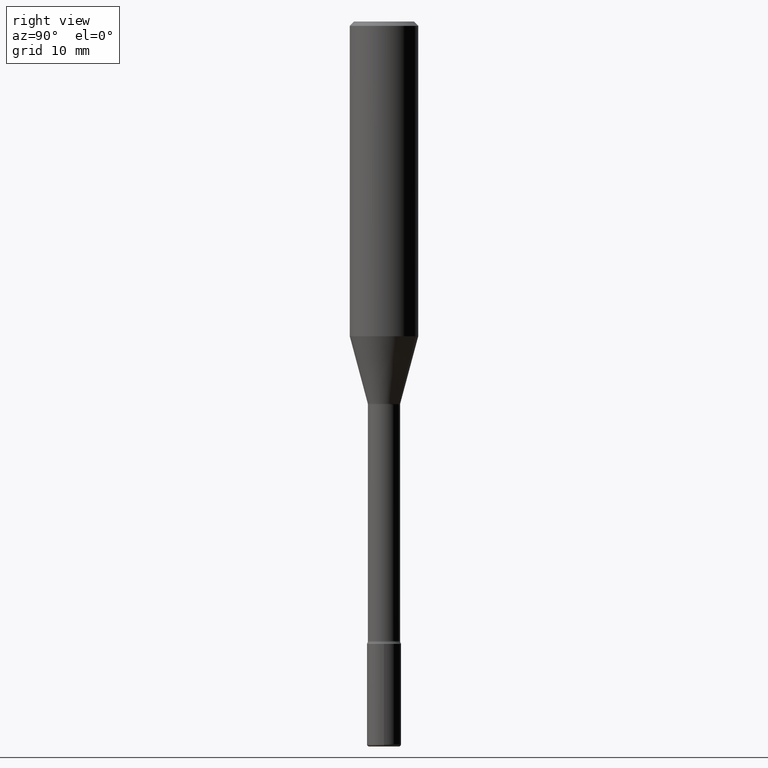
[diagram: clean part render]
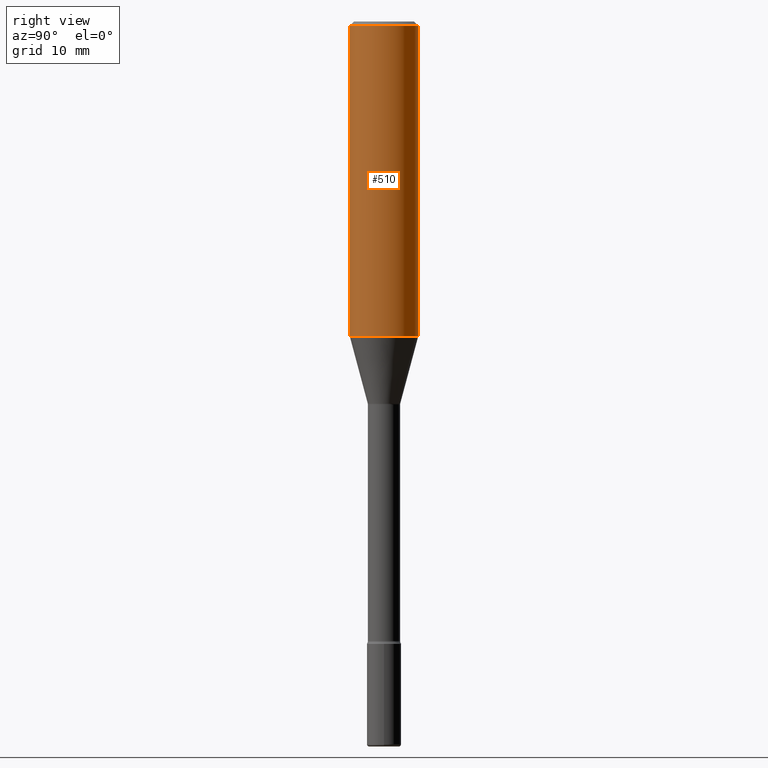
[diagram: same view with one face highlighted and labeled with its STEP entity id]
A machine part, right view. The second image highlights one B-rep face of the part: STEP entity #510.
In plain terms, the highlighted cylindrical surface (edge-blend (fillet) strip) has radius 2.9997 mm, axis along (-0, 0, 1).
Its self-contained STEP definition (entity closure, byte-faithful):
#25 = CARTESIAN_POINT ( 'NONE',  ( -8.246878922347212441E-16, -0.1181000000000037714, -1.085273619446188276 ) ) ;
#75 = AXIS2_PLACEMENT_3D ( 'NONE', #563, #560, #337 ) ;
#78 = CARTESIAN_POINT ( 'NONE',  ( 3.667971862080338817E-31, -5.237553310618831452E-17, -0.01500000000000002720 ) ) ;
#110 = CARTESIAN_POINT ( 'NONE',  ( -8.246878922347479668E-16, -0.1180999999999999966, 8.904434295473012272E-16 ) ) ;
#133 = CARTESIAN_POINT ( 'NONE',  ( 8.391509709326781971E-16, 0.1180999999999999966, 6.570336823519088696E-17 ) ) ;
#139 = ORIENTED_EDGE ( 'NONE', *, *, #466, .T. ) ;
#146 = DIRECTION ( 'NONE',  ( -2.445314574720221172E-29, 3.491702207079214016E-15, 1.000000000000000000 ) ) ;
#149 = CARTESIAN_POINT ( 'NONE',  ( -8.246878922347475723E-16, -0.1181000000000000522, -0.01499999999999961607 ) ) ;
#155 = AXIS2_PLACEMENT_3D ( 'NONE', #567, #416, #513 ) ;
#172 = VERTEX_POINT ( 'NONE', #235 ) ;
#182 = ORIENTED_EDGE ( 'NONE', *, *, #509, .F. ) ;
#197 = VECTOR ( 'NONE', #401, 39.37007874015748143 ) ;
#202 = VERTEX_POINT ( 'NONE', #25 ) ;
#215 = FACE_OUTER_BOUND ( 'NONE', #293, .T. ) ;
#224 = AXIS2_PLACEMENT_3D ( 'NONE', #78, #377, #253 ) ;
#235 = CARTESIAN_POINT ( 'NONE',  ( 8.391509709327049197E-16, 0.1180999999999999411, -0.01500000000000044006 ) ) ;
#246 = CYLINDRICAL_SURFACE ( 'NONE', #75, 0.1180999999999999966 ) ;
#253 = DIRECTION ( 'NONE',  ( -6.982962677686265922E-15, -1.000000000000000000, 3.487819265831411744E-15 ) ) ;
#258 = ORIENTED_EDGE ( 'NONE', *, *, #521, .T. ) ;
#284 = CARTESIAN_POINT ( 'NONE',  ( 8.391509709327049197E-16, 0.1180999999999962358, -1.085273619446189164 ) ) ;
#293 = EDGE_LOOP ( 'NONE', ( #258, #139, #182, #301 ) ) ;
#301 = ORIENTED_EDGE ( 'NONE', *, *, #371, .F. ) ;
#314 = VERTEX_POINT ( 'NONE', #149 ) ;
#334 = LINE ( 'NONE', #110, #197 ) ;
#337 = DIRECTION ( 'NONE',  ( -6.982962677686265922E-15, -1.000000000000000000, 3.491702207079213622E-15 ) ) ;
#371 = EDGE_CURVE ( 'NONE', #202, #314, #334, .T. ) ;
#376 = VERTEX_POINT ( 'NONE', #284 ) ;
#377 = DIRECTION ( 'NONE',  ( -2.445314574720221452E-29, 3.491702207079214016E-15, 1.000000000000000000 ) ) ;
#401 = DIRECTION ( 'NONE',  ( -2.445314574720221172E-29, 3.491702207079214016E-15, 1.000000000000000000 ) ) ;
#416 = DIRECTION ( 'NONE',  ( -2.445314574720221452E-29, 3.491702207079214016E-15, 1.000000000000000000 ) ) ;
#417 = CIRCLE ( 'NONE', #224, 0.1180999999999999966 ) ;
#466 = EDGE_CURVE ( 'NONE', #376, #172, #535, .T. ) ;
#469 = CIRCLE ( 'NONE', #155, 0.1180999999999999966 ) ;
#476 = VECTOR ( 'NONE', #146, 39.37007874015748143 ) ;
#509 = EDGE_CURVE ( 'NONE', #314, #172, #417, .T. ) ;
#510 = ADVANCED_FACE ( 'NONE', ( #215 ), #246, .T. ) ;
#513 = DIRECTION ( 'NONE',  ( -6.982962677686265922E-15, -1.000000000000000000, 3.469747663417777397E-15 ) ) ;
#521 = EDGE_CURVE ( 'NONE', #202, #376, #469, .T. ) ;
#535 = LINE ( 'NONE', #133, #476 ) ;
#560 = DIRECTION ( 'NONE',  ( -2.445314574720221452E-29, 3.491702207079214016E-15, 1.000000000000000000 ) ) ;
#563 = CARTESIAN_POINT ( 'NONE',  ( -1.169113584055446105E-44, 1.669184350826100908E-30, 4.780733988912460139E-16 ) ) ;
#567 = CARTESIAN_POINT ( 'NONE',  ( 2.653835399191132044E-29, -3.789452292305104081E-15, -1.085273619446188720 ) ) ;